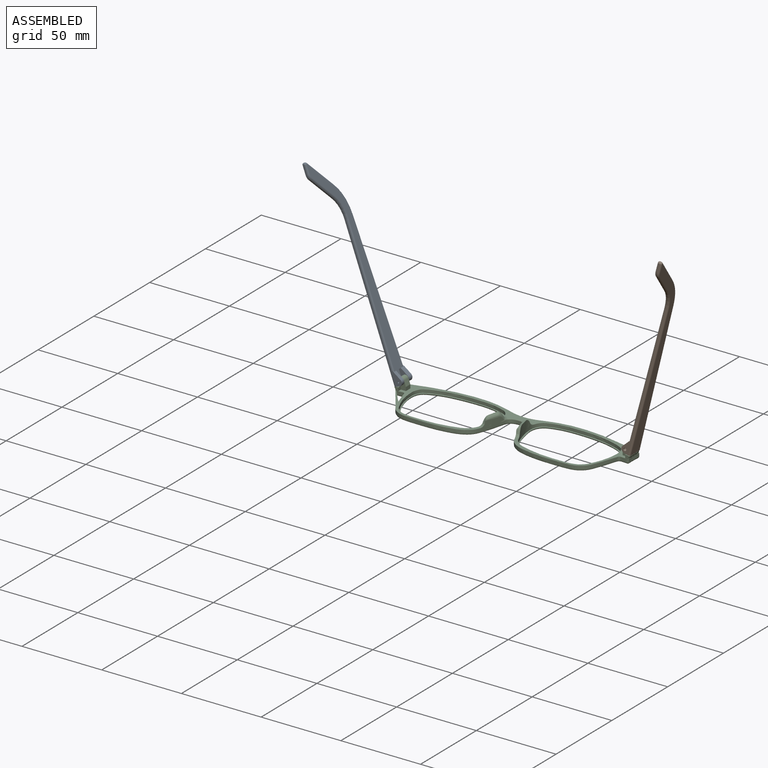
[diagram: assembled view]
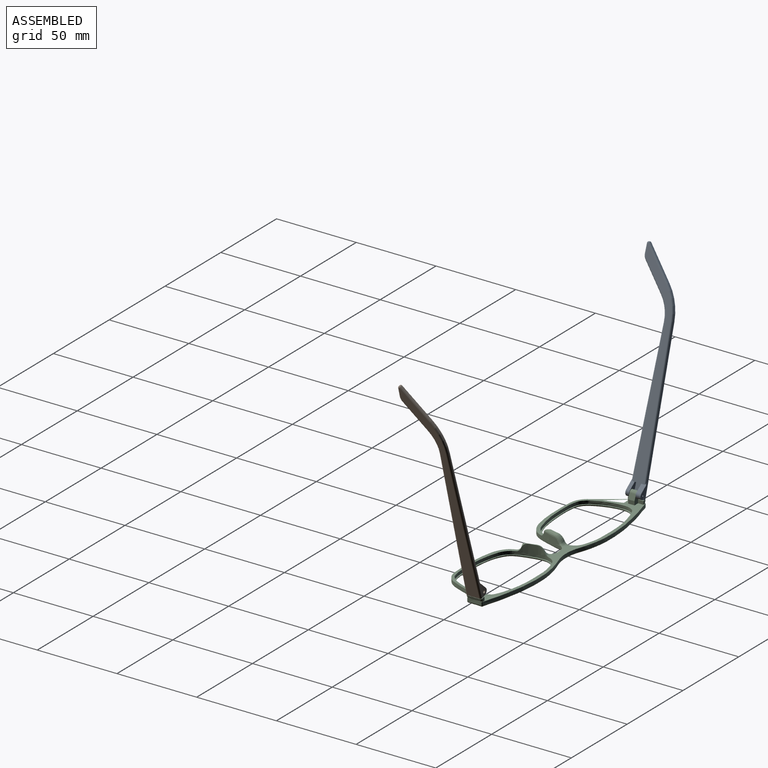
[diagram: assembled view, second angle]
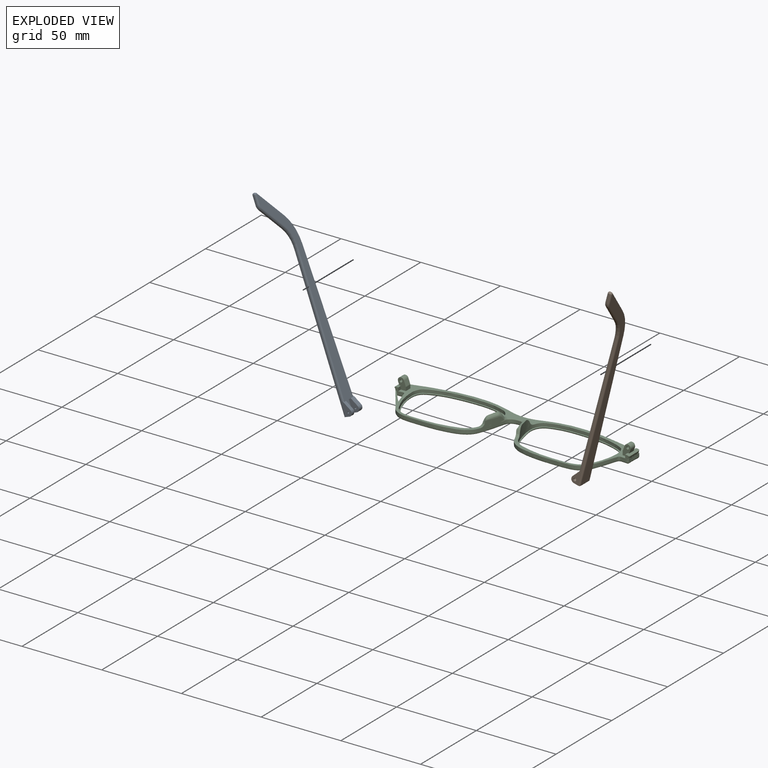
[diagram: exploded view]
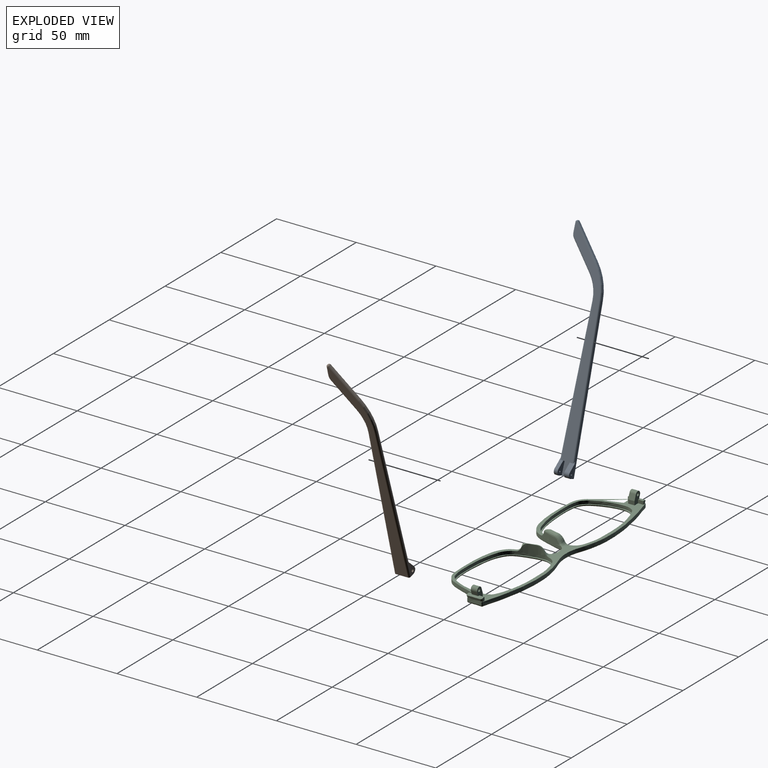
[diagram: exploded view, second angle]
ASSEMBLY  parts=3 mates=2
PART A: 43 faces, bbox 130.2x29.5x5.9 mm
  f0: plane 9.62x3.72mm, normal (1,0,0), area 24.7mm2, adj f1,f3,f4,f5,f10,f16,f18,f28
  f1: cylinder r=2.2mm len=3.45mm, axis (0,-1,0), area 11mm2, adj f0,f2,f4,f37
  f2: plane 6.01x3.91mm, normal (-0.55,0,0.84), area 12.7mm2, adj f1,f4,f9,f19,f37
  f3: plane 2.26x0.1mm, normal (0,0,1), area 0.1mm2, adj f0,f5,f18
  f4: plane 92.1x4.9mm, normal (0,-1,0), area 79.9mm2, adj f0,f1,f2,f14,f19,f36,f42
  f5: plane 93.42x4.13mm, normal (-0.04,1,0), area 64.8mm2, adj f0,f3,f11,f15,f17,f27,f28
  f6: plane 17.82x15.72mm, normal (-0.66,0.75,0), area 14.3mm2, adj f11,f12,f25,f30
  f7: plane 5.46x0.6mm, normal (0,-1,0), area 3.3mm2, adj f12,f13,f23,f32
  f8: plane 14.99x13.23mm, normal (0.66,-0.75,0), area 12mm2, adj f13,f14,f21,f34
  f9: plane 121.18x26.73mm, normal (0,0,1), area 627.7mm2, adj f2,f17,f19,f20,f21,f22,f23,f25
  f10: plane 129.1x27.08mm, normal (0,0,-1), area 686.5mm2, adj f0,f28,f29,f30,f32,f33,f34,f35
  f11: cylinder r=30mm len=18.52mm, axis (0,0,-1), area 12.2mm2, adj f5,f6,f26,f29
  f12: cylinder r=1mm len=1.75mm, axis (0,0,-1), area 1.5mm2, adj f6,f7,f24,f31
  f13: cylinder r=5mm len=3.31mm, axis (0,0,-1), area 2.2mm2, adj f7,f8,f22,f33
  f14: cylinder r=20mm len=13.23mm, axis (0,0,1), area 8.7mm2, adj f4,f8,f20,f35
  f15: plane 5.66x0.25mm, normal (0,0,-1), area 0.7mm2, adj f5,f17,f18
  f16: cylinder r=2.2mm len=3.45mm, axis (0,-1,0), area 14.8mm2, adj f0,f17,f18,f38
  f17: plane 6.01x3.91mm, normal (-0.55,0,0.84), area 16.9mm2, adj f5,f9,f15,f16,f18,f27,f38
  f18: plane 7.92x3.3mm, normal (0,1,0), area 15.9mm2, adj f0,f3,f15,f16,f17,f41
  f19: cylinder r=1mm len=84.18mm, axis (-1,0,0), area 131.4mm2, adj f2,f4,f9,f20
  f20: torus R=21mm, axis (0,0,1), area 23.1mm2, adj f9,f14,f19,f21
  f21: cylinder r=1mm len=15.65mm, axis (-0.75,-0.66,0), area 31.4mm2, adj f8,f9,f20,f22
  f22: torus R=4mm, axis (0,0,1), area 5.3mm2, adj f9,f13,f21,f23
  f23: cylinder r=1mm len=5.46mm, axis (-1,0,0), area 8.6mm2, adj f7,f9,f22,f24
  f24: sphere r=1mm, area 2.4mm2, adj f12,f23,f25
  f25: cylinder r=1mm len=18.48mm, axis (0.75,0.66,0), area 37.3mm2, adj f6,f9,f24,f26
  f26: torus R=29mm, axis (0,0,1), area 31.6mm2, adj f9,f11,f25,f27
  f27: cylinder r=1mm len=85.5mm, axis (1,0.04,0), area 133.5mm2, adj f5,f9,f17,f26
  f28: cylinder r=1mm len=93.46mm, axis (-1,-0.04,0), area 146.9mm2, adj f0,f5,f10,f29
  f29: torus R=29mm, axis (0,0,1), area 31.6mm2, adj f10,f11,f28,f30
  f30: cylinder r=1mm len=18.48mm, axis (-0.75,-0.66,0), area 37.3mm2, adj f6,f10,f29,f31
  f31: sphere r=1mm, area 2.4mm2, adj f12,f30,f32
  f32: cylinder r=1mm len=5.46mm, axis (1,0,0), area 8.6mm2, adj f7,f10,f31,f33
  f33: torus R=4mm, axis (0,0,1), area 5.3mm2, adj f10,f13,f32,f34
  f34: cylinder r=1mm len=15.65mm, axis (0.75,0.66,0), area 31.4mm2, adj f8,f10,f33,f35
  f35: torus R=21mm, axis (0,0,1), area 23.1mm2, adj f10,f14,f34,f36
  f36: cylinder r=1mm len=92.1mm, axis (1,0,0), area 144.7mm2, adj f0,f4,f10,f35
  f37: plane 7.92x4.7mm, normal (0,1,0), area 27mm2, adj f0,f1,f2,f39,f40,f42
  f38: plane 7.92x4.7mm, normal (0,-1,0), area 27mm2, adj f0,f16,f17,f39,f40,f41
  f39: plane 7.92x4.1mm, normal (0,0,1), area 32.5mm2, adj f0,f37,f38,f40
  f40: plane 4.1x1.4mm, normal (1,0,0), area 5.7mm2, adj f9,f37,f38,f39
  f41: cylinder r=0.5mm len=3.1mm, axis (0,-1,0), area 9.7mm2, adj f18,f38
  f42: cylinder r=0.5mm len=2.3mm, axis (0,-1,0), area 7.2mm2, adj f4,f37
PART B: 43 faces, bbox 130.2x29.5x5.9 mm
  f0: plane 9.62x3.72mm, normal (-1,0,0), area 24.7mm2, adj f1,f3,f4,f5,f10,f16,f18,f28
  f1: cylinder r=2.2mm len=3.45mm, axis (0,-1,0), area 11mm2, adj f0,f2,f4,f37
  f2: plane 6.01x3.91mm, normal (0.55,0,0.84), area 12.7mm2, adj f1,f4,f9,f19,f37
  f3: plane 2.26x0.1mm, normal (0,0,1), area 0.1mm2, adj f0,f5,f18
  f4: plane 92.1x4.9mm, normal (0,-1,0), area 78.2mm2, adj f0,f1,f2,f14,f19,f36,f42
  f5: plane 93.42x4.13mm, normal (0.04,1,0), area 64.8mm2, adj f0,f3,f11,f15,f17,f27,f28
  f6: plane 17.82x15.72mm, normal (0.66,0.75,0), area 14.3mm2, adj f11,f12,f25,f30
  f7: plane 5.46x0.6mm, normal (0,-1,0), area 3.3mm2, adj f12,f13,f23,f32
  f8: plane 14.99x13.23mm, normal (-0.66,-0.75,0), area 12mm2, adj f13,f14,f21,f34
  f9: plane 121.18x26.73mm, normal (0,0,1), area 627.7mm2, adj f2,f17,f19,f20,f21,f22,f23,f25
  f10: plane 129.1x27.08mm, normal (0,0,-1), area 686.5mm2, adj f0,f28,f29,f30,f32,f33,f34,f35
  f11: cylinder r=30mm len=18.52mm, axis (0,0,-1), area 12.2mm2, adj f5,f6,f26,f29
  f12: cylinder r=1mm len=1.75mm, axis (0,0,-1), area 1.5mm2, adj f6,f7,f24,f31
  f13: cylinder r=5mm len=3.31mm, axis (0,0,-1), area 2.2mm2, adj f7,f8,f22,f33
  f14: cylinder r=20mm len=13.23mm, axis (0,0,1), area 8.7mm2, adj f4,f8,f20,f35
  f15: plane 5.66x0.25mm, normal (0,0,-1), area 0.7mm2, adj f5,f17,f18
  f16: cylinder r=2.2mm len=3.45mm, axis (0,-1,0), area 14.8mm2, adj f0,f17,f18,f38
  f17: plane 6.01x3.91mm, normal (0.55,0,0.84), area 16.9mm2, adj f5,f9,f15,f16,f18,f27,f38
  f18: plane 7.92x3.3mm, normal (0,1,0), area 14.3mm2, adj f0,f3,f15,f16,f17,f41
  f19: cylinder r=1mm len=84.18mm, axis (1,0,0), area 131.4mm2, adj f2,f4,f9,f20
  f20: torus R=21mm, axis (0,0,1), area 23.1mm2, adj f9,f14,f19,f21
  f21: cylinder r=1mm len=15.65mm, axis (0.75,-0.66,0), area 31.4mm2, adj f8,f9,f20,f22
  f22: torus R=4mm, axis (0,0,1), area 5.3mm2, adj f9,f13,f21,f23
  f23: cylinder r=1mm len=5.46mm, axis (1,0,0), area 8.6mm2, adj f7,f9,f22,f24
  f24: sphere r=1mm, area 2.4mm2, adj f12,f23,f25
  f25: cylinder r=1mm len=18.48mm, axis (-0.75,0.66,0), area 37.3mm2, adj f6,f9,f24,f26
  f26: torus R=29mm, axis (0,0,1), area 31.6mm2, adj f9,f11,f25,f27
  f27: cylinder r=1mm len=85.5mm, axis (-1,0.04,0), area 133.5mm2, adj f5,f9,f17,f26
  f28: cylinder r=1mm len=93.46mm, axis (1,-0.04,0), area 146.9mm2, adj f0,f5,f10,f29
  f29: torus R=29mm, axis (0,0,1), area 31.6mm2, adj f10,f11,f28,f30
  f30: cylinder r=1mm len=18.48mm, axis (0.75,-0.66,0), area 37.3mm2, adj f6,f10,f29,f31
  f31: sphere r=1mm, area 2.4mm2, adj f12,f30,f32
  f32: cylinder r=1mm len=5.46mm, axis (-1,0,0), area 8.6mm2, adj f7,f10,f31,f33
  f33: torus R=4mm, axis (0,0,1), area 5.3mm2, adj f10,f13,f32,f34
  f34: cylinder r=1mm len=15.65mm, axis (-0.75,0.66,0), area 31.4mm2, adj f8,f10,f33,f35
  f35: torus R=21mm, axis (0,0,1), area 23.1mm2, adj f10,f14,f34,f36
  f36: cylinder r=1mm len=92.1mm, axis (-1,0,0), area 144.7mm2, adj f0,f4,f10,f35
  f37: plane 7.92x4.7mm, normal (0,1,0), area 25.4mm2, adj f0,f1,f2,f39,f40,f42
  f38: plane 7.92x4.7mm, normal (0,-1,0), area 25.4mm2, adj f0,f16,f17,f39,f40,f41
  f39: plane 7.92x4.1mm, normal (0,0,1), area 32.5mm2, adj f0,f37,f38,f40
  f40: plane 4.1x1.4mm, normal (-1,0,0), area 5.7mm2, adj f9,f37,f38,f39
  f41: cylinder r=0.88mm len=3.1mm, axis (0,-1,0), area 17mm2, adj f18,f38
  f42: cylinder r=0.88mm len=2.3mm, axis (0,-1,0), area 12.6mm2, adj f4,f37
PART C: 102 faces, bbox 148.1x40.9x17.9 mm
  f0: bspline ~1.82x1.22mm, area 0.7mm2, adj f2,f7,f37,f44
  f1: plane 147.39x40.16mm, normal (0,0,1), area 836.7mm2, adj f4,f5,f6,f7,f8,f12,f20,f23
  f2: bspline ~5.39x4.93mm, area 12.7mm2, adj f0,f7,f37,f41,f43,f44,f45
  f3: plane 4.46x1.45mm, normal (0,0,1), area 0.1mm2, adj f7,f38
  f4: plane 1.23x0.04mm, normal (0,0,1), area 0mm2, adj f1,f7,f22
  f5: plane 6.97x5.07mm, normal (0,1,0), area 22.7mm2, adj f1,f20,f21,f25,f27,f28,f30,f31
  f6: plane 3.2x2.36mm, normal (0,-1,0), area 5.7mm2, adj f1,f20,f26,f29
  f7: extruded ~73.26x39.84mm, area 292.7mm2, adj f0,f1,f2,f3,f4,f8,f13,f14
  f8: extruded ~35.39x5.69mm, area 72.2mm2, adj f1,f7,f18,f59
  f9: plane 144.78x37.85mm, normal (0,0,-1), area 478.1mm2, adj f13,f15,f17,f18,f19,f63,f65,f67
  f10: plane 56.31x36.53mm, normal (0,0,1), area 124.8mm2, adj f11,f19
  f11: extruded ~55.63x36.1mm, area 160.7mm2, adj f10,f12
  f12: extruded ~55.63x36.1mm, area 225.7mm2, adj f1,f11,f39,f40,f41,f42,f43,f46
  f13: bspline ~73.27x30.39mm, area 161.7mm2, adj f7,f9,f14,f63
  f14: bspline ~1x1mm, area 0.8mm2, adj f7,f13,f15
  f15: bspline ~8.99x1.23mm, area 12.6mm2, adj f7,f9,f14,f16
  f16: bspline ~1.04x1mm, area 0.7mm2, adj f7,f15,f17
  f17: bspline ~45.86x8.59mm, area 59.8mm2, adj f7,f9,f16,f18
  f18: bspline ~37.01x6.7mm, area 56.6mm2, adj f8,f9,f17,f68
  f19: bspline ~56.15x36.68mm, area 237.6mm2, adj f9,f10
  f20: plane 4x2.36mm, normal (-1,0,0), area 9.5mm2, adj f1,f5,f6,f21
  f21: plane 4x0.02mm, normal (0.34,0,0.94), area 0.1mm2, adj f5,f20,f28
  f22: plane 2.76x2.53mm, normal (0,-1,0), area 3.9mm2, adj f4,f26,f27,f35,f48
  f23: plane 7.67x1.6mm, normal (0.94,0,-0.34), area 13mm2, adj f1,f35,f36,f48
  f24: plane 2.1x1.69mm, normal (0,1,0), area 2.8mm2, adj f1,f25,f27,f36,f48
  f25: plane 3.3x2.1mm, normal (-1,0,0), area 6.9mm2, adj f1,f5,f24,f27
  f26: plane 2.35x2.1mm, normal (-1,0,0), area 4.9mm2, adj f1,f6,f22,f27,f29
  f27: plane 9.65x1.24mm, normal (0,0,1), area 8.2mm2, adj f5,f22,f24,f25,f26,f29,f30,f48
  f28: plane 4x3.31mm, normal (-0.94,0,0.34), area 14.1mm2, adj f5,f21,f29,f32
  f29: plane 5.77x5.06mm, normal (0,-1,0), area 17mm2, adj f6,f26,f27,f28,f30,f31,f32,f33
  f30: plane 4x2.21mm, normal (0.94,0,-0.34), area 9.4mm2, adj f5,f27,f29,f33
  f31: plane 4x0.01mm, normal (0.34,0,0.94), area 0mm2, adj f5,f29,f32,f33
  f32: cylinder r=1.98mm len=4mm, axis (0,1,0), area 12.4mm2, adj f5,f28,f29,f31
  f33: cylinder r=1.98mm len=4mm, axis (0,-1,0), area 12.4mm2, adj f5,f29,f30,f31
  f34: cylinder r=0.88mm len=4mm, axis (0,-1,0), area 22mm2, adj f5,f29
  f35: cone r=1mm half-angle=20deg, axis (0,0,1), area 2.3mm2, adj f1,f22,f23,f48
  f36: cylinder r=1mm len=2.28mm, axis (-0.34,0,-0.94), area 3mm2, adj f1,f23,f24,f48
  f37: extruded ~3.67x3.11mm, area 5.9mm2, adj f0,f2,f7,f51
  f38: extruded ~4.44x3.32mm, area 15.1mm2, adj f3,f7,f42,f43,f47
  f39: extruded ~4.98x1.36mm, area 6.6mm2, adj f12,f41
  f40: plane 3.63x0.97mm, normal (0,0,1), area 0.3mm2, adj f12,f41,f43
  f41: bspline ~15.5x15.35mm, area 6.4mm2, adj f2,f12,f39,f40,f46
  f42: bspline ~7.26x7.26mm, area 6.3mm2, adj f12,f38,f43,f47
  f43: bspline ~10.29x4.84mm, area 21.4mm2, adj f2,f7,f12,f38,f40,f42
  f44: bspline ~2.66x2.04mm, area 1.9mm2, adj f0,f2,f7,f45,f50
  f45: bspline ~3.55x3.47mm, area 3.7mm2, adj f1,f2,f44,f46,f50
  f46: bspline ~5.71x4.38mm, area 7.6mm2, adj f1,f12,f41,f45
  f47: bspline ~3.7x3.66mm, area 7.8mm2, adj f1,f7,f12,f38,f42
  f48: plane 9.71x1.44mm, normal (0.34,0,0.94), area 13.9mm2, adj f22,f23,f24,f27,f35,f36
  f49: bspline ~6.38x2.14mm, area 2.6mm2, adj f1,f7,f50,f99
  f50: bspline ~2.1x1.46mm, area 0.6mm2, adj f7,f44,f45,f49
  f51: bspline ~5.24x1.75mm, area 0mm2, adj f7,f37
  f52: bspline ~2.19x1.4mm, area 0.7mm2, adj f53,f58,f87,f94
  f53: bspline ~6.1x4.93mm, area 12.6mm2, adj f52,f58,f87,f91,f93,f94,f95
  f54: plane 4.46x1.45mm, normal (0,0,1), area 0.1mm2, adj f58,f88
  f55: plane 1.23x0.04mm, normal (0,0,1), area 0mm2, adj f1,f58,f72
  f56: plane 6.97x5.07mm, normal (0,1,0), area 22.7mm2, adj f1,f70,f71,f75,f77,f78,f80,f81
  f57: plane 3.2x2.36mm, normal (0,-1,0), area 5.7mm2, adj f1,f70,f76,f79
  f58: extruded ~73.26x39.84mm, area 292.7mm2, adj f1,f7,f52,f53,f54,f55,f59,f63
  f59: extruded ~35.39x5.69mm, area 72.2mm2, adj f1,f8,f58,f68
  f60: plane 56.31x36.53mm, normal (0,0,1), area 124.8mm2, adj f61,f69
  f61: extruded ~55.63x36.1mm, area 160.7mm2, adj f60,f62
  f62: extruded ~55.63x36.1mm, area 225.6mm2, adj f1,f61,f89,f90,f91,f92,f93,f96
  f63: bspline ~73.83x30.39mm, area 161.7mm2, adj f9,f13,f58,f64
  f64: bspline ~1x1mm, area 0.8mm2, adj f58,f63,f65
  f65: bspline ~8.99x1.23mm, area 12.6mm2, adj f9,f58,f64,f66
  f66: bspline ~1.04x1mm, area 0.8mm2, adj f58,f65,f67
  f67: bspline ~45.86x8.59mm, area 59.8mm2, adj f9,f58,f66,f68
  f68: bspline ~37.01x6.7mm, area 56.6mm2, adj f9,f18,f59,f67
  f69: bspline ~56.15x36.68mm, area 237.6mm2, adj f9,f60
  f70: plane 4x2.36mm, normal (1,0,0), area 9.5mm2, adj f1,f56,f57,f71
  f71: plane 4x0.02mm, normal (-0.34,0,0.94), area 0.1mm2, adj f56,f70,f78
  f72: plane 2.76x2.53mm, normal (0,-1,0), area 3.9mm2, adj f55,f76,f77,f85,f98
  f73: plane 7.67x1.6mm, normal (-0.94,0,-0.34), area 13mm2, adj f1,f85,f86,f98
  f74: plane 2.1x1.69mm, normal (0,1,0), area 2.8mm2, adj f1,f75,f77,f86,f98
  f75: plane 3.3x2.1mm, normal (1,0,0), area 6.9mm2, adj f1,f56,f74,f77
  f76: plane 2.35x2.1mm, normal (1,0,0), area 4.9mm2, adj f1,f57,f72,f77,f79
  f77: plane 9.65x1.24mm, normal (0,0,1), area 8.2mm2, adj f56,f72,f74,f75,f76,f79,f80,f98
  f78: plane 4x3.31mm, normal (0.94,0,0.34), area 14.1mm2, adj f56,f71,f79,f82
  f79: plane 5.77x5.06mm, normal (0,-1,0), area 17mm2, adj f57,f76,f77,f78,f80,f81,f82,f83
  f80: plane 4x2.21mm, normal (-0.94,0,-0.34), area 9.4mm2, adj f56,f77,f79,f83
  f81: plane 4x0.01mm, normal (-0.34,0,0.94), area 0mm2, adj f56,f79,f82,f83
  f82: cylinder r=1.98mm len=4mm, axis (0,1,0), area 12.4mm2, adj f56,f78,f79,f81
  f83: cylinder r=1.98mm len=4mm, axis (0,-1,0), area 12.4mm2, adj f56,f79,f80,f81
  f84: cylinder r=0.88mm len=4mm, axis (0,-1,0), area 22mm2, adj f56,f79
  f85: cone r=1mm half-angle=20deg, axis (0,0,1), area 2.3mm2, adj f1,f72,f73,f98
  f86: cylinder r=1mm len=2.28mm, axis (0.34,0,-0.94), area 3mm2, adj f1,f73,f74,f98
  f87: extruded ~3.67x3.11mm, area 5.9mm2, adj f52,f53,f58,f101
  f88: extruded ~4.44x3.32mm, area 15.1mm2, adj f54,f58,f92,f93,f97
  f89: extruded ~4.98x1.36mm, area 6.6mm2, adj f62,f91
  f90: plane 3.63x0.97mm, normal (0,0,1), area 0.3mm2, adj f62,f91,f93
  f91: bspline ~15.5x15.35mm, area 6.4mm2, adj f53,f62,f89,f90,f96
  f92: bspline ~7.26x7.26mm, area 6.2mm2, adj f62,f88,f93,f97
  f93: bspline ~10.29x4.84mm, area 21.5mm2, adj f53,f58,f62,f88,f90,f92
  f94: bspline ~2.65x2.03mm, area 1.9mm2, adj f52,f53,f58,f95,f100
  f95: bspline ~3.55x3.47mm, area 3.7mm2, adj f1,f53,f94,f96,f100
  f96: bspline ~4.51x3.85mm, area 7.6mm2, adj f1,f62,f91,f95
  f97: bspline ~3.7x3.66mm, area 7.8mm2, adj f1,f58,f62,f88,f92
  f98: plane 9.71x1.44mm, normal (-0.34,0,0.94), area 13.9mm2, adj f72,f73,f74,f77,f85,f86
  f99: bspline ~6.38x2.14mm, area 2.6mm2, adj f1,f49,f58,f100
  f100: bspline ~2.1x1.46mm, area 0.6mm2, adj f58,f94,f95,f99
  f101: bspline ~5.24x1.75mm, area 0mm2, adj f58,f87
PLACE A rot(axis=(0,1,0),70deg) t=(-84.77,-5.75,56)mm
PLACE B rot(axis=(0,-1,0),75deg) t=(68.2,-5.75,-61.61)mm
PLACE C t=(10.15,-1.13,-5.77)mm
MATE revolute A.f1 <-> C.f82  axis (0,-1,0) through (-60.89,2.72,1.22)mm
MATE revolute B.f41 <-> C.f33  axis (0,-1,0) through (81.2,2.72,1.21)mm
